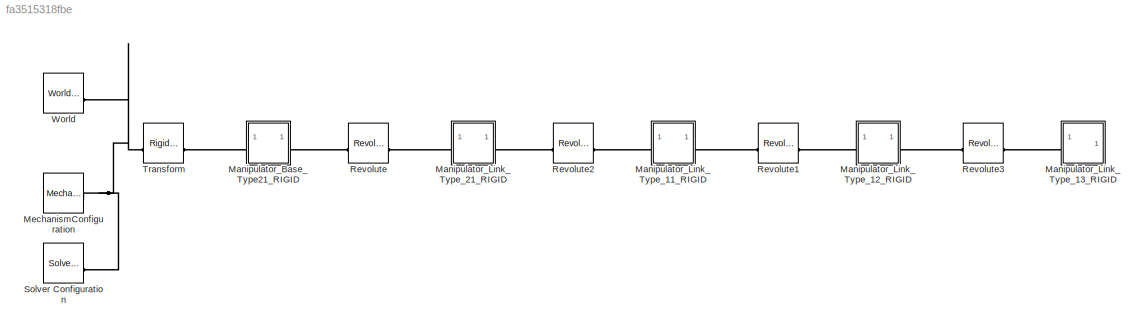
MODEL slx_fa3515318fbe
KIND model
CONFIG AbsTol = auto
CONFIG EnableMultiTasking = off
CONFIG FixedStep = auto
CONFIG MaxStep = auto
CONFIG MinStep = auto
CONFIG RelTol = 1e-3
CONFIG SampleTimeConstraint = Unconstrained
CONFIG SolverName = VariableStepAuto
CONFIG StartTime = 0.0
CONFIG StopTime = 10.0
WORKSPACE source: external: MATLAB File  (data not in archive)
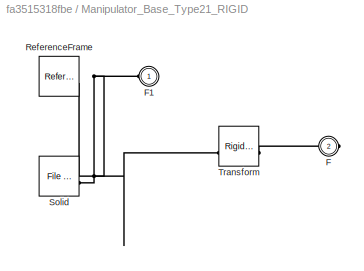
BLOCK [SubSystem] Manipulator_Base_Type21_RIGID
BLOCK [PMIOPort] Manipulator_Base_Type21_RIGID/F
  Port = 2
  Side = Right
BLOCK [PMIOPort] Manipulator_Base_Type21_RIGID/F1
  Side = Left
BLOCK [Reference] Manipulator_Base_Type21_RIGID/ReferenceFrame  REF=sm_lib/Frames and
Transforms/Reference
Frame
  SourceBlock = sm_lib/Frames and\nTransforms/Reference\nFrame
  SourceType = Reference\nFrame
BLOCK [Reference] Manipulator_Base_Type21_RIGID/Solid  REF=sm_lib/Body Elements/File Solid
  SourceBlock = sm_lib/Body Elements/File Solid
  SourceType = File Solid
BLOCK [Reference] Manipulator_Base_Type21_RIGID/Transform  REF=sm_lib/Frames and
Transforms/Rigid
Transform
  SourceBlock = sm_lib/Frames and\nTransforms/Rigid\nTransform
  SourceType = Rigid\nTransform
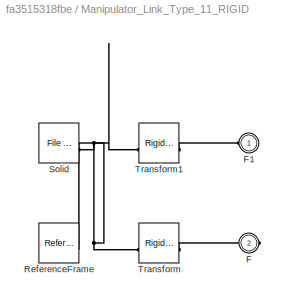
BLOCK [SubSystem] Manipulator_Link_Type_11_RIGID
BLOCK [PMIOPort] Manipulator_Link_Type_11_RIGID/F
  Port = 2
  Side = Right
BLOCK [PMIOPort] Manipulator_Link_Type_11_RIGID/F1
  Side = Left
BLOCK [Reference] Manipulator_Link_Type_11_RIGID/ReferenceFrame  REF=sm_lib/Frames and
Transforms/Reference
Frame
  SourceBlock = sm_lib/Frames and\nTransforms/Reference\nFrame
  SourceType = Reference\nFrame
BLOCK [Reference] Manipulator_Link_Type_11_RIGID/Solid  REF=sm_lib/Body Elements/File Solid
  SourceBlock = sm_lib/Body Elements/File Solid
  SourceType = File Solid
BLOCK [Reference] Manipulator_Link_Type_11_RIGID/Transform  REF=sm_lib/Frames and
Transforms/Rigid
Transform
  SourceBlock = sm_lib/Frames and\nTransforms/Rigid\nTransform
  SourceType = Rigid\nTransform
BLOCK [Reference] Manipulator_Link_Type_11_RIGID/Transform1  REF=sm_lib/Frames and
Transforms/Rigid
Transform
  SourceBlock = sm_lib/Frames and\nTransforms/Rigid\nTransform
  SourceType = Rigid\nTransform
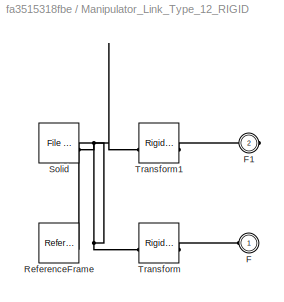
BLOCK [SubSystem] Manipulator_Link_Type_12_RIGID
BLOCK [PMIOPort] Manipulator_Link_Type_12_RIGID/F
  Side = Left
BLOCK [PMIOPort] Manipulator_Link_Type_12_RIGID/F1
  Port = 2
  Side = Right
BLOCK [Reference] Manipulator_Link_Type_12_RIGID/ReferenceFrame  REF=sm_lib/Frames and
Transforms/Reference
Frame
  SourceBlock = sm_lib/Frames and\nTransforms/Reference\nFrame
  SourceType = Reference\nFrame
BLOCK [Reference] Manipulator_Link_Type_12_RIGID/Solid  REF=sm_lib/Body Elements/File Solid
  SourceBlock = sm_lib/Body Elements/File Solid
  SourceType = File Solid
BLOCK [Reference] Manipulator_Link_Type_12_RIGID/Transform  REF=sm_lib/Frames and
Transforms/Rigid
Transform
  SourceBlock = sm_lib/Frames and\nTransforms/Rigid\nTransform
  SourceType = Rigid\nTransform
BLOCK [Reference] Manipulator_Link_Type_12_RIGID/Transform1  REF=sm_lib/Frames and
Transforms/Rigid
Transform
  SourceBlock = sm_lib/Frames and\nTransforms/Rigid\nTransform
  SourceType = Rigid\nTransform
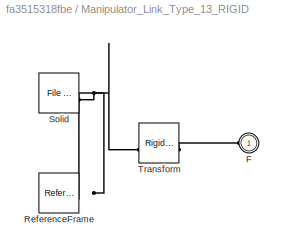
BLOCK [SubSystem] Manipulator_Link_Type_13_RIGID
BLOCK [PMIOPort] Manipulator_Link_Type_13_RIGID/F
  Side = Left
BLOCK [Reference] Manipulator_Link_Type_13_RIGID/ReferenceFrame  REF=sm_lib/Frames and
Transforms/Reference
Frame
  SourceBlock = sm_lib/Frames and\nTransforms/Reference\nFrame
  SourceType = Reference\nFrame
BLOCK [Reference] Manipulator_Link_Type_13_RIGID/Solid  REF=sm_lib/Body Elements/File Solid
  SourceBlock = sm_lib/Body Elements/File Solid
  SourceType = File Solid
BLOCK [Reference] Manipulator_Link_Type_13_RIGID/Transform  REF=sm_lib/Frames and
Transforms/Rigid
Transform
  SourceBlock = sm_lib/Frames and\nTransforms/Rigid\nTransform
  SourceType = Rigid\nTransform
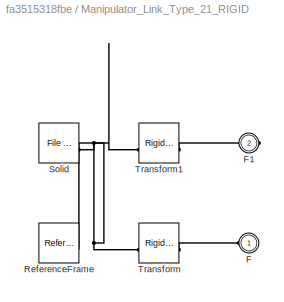
BLOCK [SubSystem] Manipulator_Link_Type_21_RIGID
BLOCK [PMIOPort] Manipulator_Link_Type_21_RIGID/F
  Side = Left
BLOCK [PMIOPort] Manipulator_Link_Type_21_RIGID/F1
  Port = 2
  Side = Right
BLOCK [Reference] Manipulator_Link_Type_21_RIGID/ReferenceFrame  REF=sm_lib/Frames and
Transforms/Reference
Frame
  SourceBlock = sm_lib/Frames and\nTransforms/Reference\nFrame
  SourceType = Reference\nFrame
BLOCK [Reference] Manipulator_Link_Type_21_RIGID/Solid  REF=sm_lib/Body Elements/File Solid
  SourceBlock = sm_lib/Body Elements/File Solid
  SourceType = File Solid
BLOCK [Reference] Manipulator_Link_Type_21_RIGID/Transform  REF=sm_lib/Frames and
Transforms/Rigid
Transform
  SourceBlock = sm_lib/Frames and\nTransforms/Rigid\nTransform
  SourceType = Rigid\nTransform
BLOCK [Reference] Manipulator_Link_Type_21_RIGID/Transform1  REF=sm_lib/Frames and
Transforms/Rigid
Transform
  SourceBlock = sm_lib/Frames and\nTransforms/Rigid\nTransform
  SourceType = Rigid\nTransform
BLOCK [Reference] MechanismConfiguration  REF=sm_lib/Utilities/Mechanism
Configuration
  SourceBlock = sm_lib/Utilities/Mechanism\nConfiguration
  SourceType = Mechanism\nConfiguration
BLOCK [Reference] Revolute  REF=sm_lib/Joints/Revolute Joint
  SourceBlock = sm_lib/Joints/Revolute Joint
  SourceType = Revolute Joint
BLOCK [Reference] Revolute1  REF=sm_lib/Joints/Revolute Joint
  SourceBlock = sm_lib/Joints/Revolute Joint
  SourceType = Revolute Joint
BLOCK [Reference] Revolute2  REF=sm_lib/Joints/Revolute Joint
  SourceBlock = sm_lib/Joints/Revolute Joint
  SourceType = Revolute Joint
BLOCK [Reference] Revolute3  REF=sm_lib/Joints/Revolute Joint
  SourceBlock = sm_lib/Joints/Revolute Joint
  SourceType = Revolute Joint
BLOCK [Reference] Solver Configuration  REF=nesl_utility/Solver
Configuration
  SourceBlock = nesl_utility/Solver\nConfiguration
  SourceType = Solver\nConfiguration
BLOCK [Reference] Transform  REF=sm_lib/Frames and
Transforms/Rigid
Transform
  SourceBlock = sm_lib/Frames and\nTransforms/Rigid\nTransform
  SourceType = Rigid\nTransform
BLOCK [Reference] World  REF=sm_lib/Frames and
Transforms/World Frame
  SourceBlock = sm_lib/Frames and\nTransforms/World Frame
  SourceType = World Frame
PNET net1: Manipulator_Base_Type21_RIGID/F1:RConn1 -- Manipulator_Base_Type21_RIGID/ReferenceFrame:RConn1 -- Manipulator_Base_Type21_RIGID/Solid:RConn1 -- Manipulator_Base_Type21_RIGID/Transform:LConn1
PLINE Manipulator_Base_Type21_RIGID/F:RConn1 -- Manipulator_Base_Type21_RIGID/Transform:RConn1
PLINE Manipulator_Base_Type21_RIGID:LConn1 -- Transform:RConn1
PLINE Manipulator_Base_Type21_RIGID:RConn1 -- Revolute:LConn1
PLINE Manipulator_Link_Type_11_RIGID/F1:RConn1 -- Manipulator_Link_Type_11_RIGID/Transform1:RConn1
PLINE Manipulator_Link_Type_11_RIGID/F:RConn1 -- Manipulator_Link_Type_11_RIGID/Transform:RConn1
PNET net2: Manipulator_Link_Type_11_RIGID/ReferenceFrame:RConn1 -- Manipulator_Link_Type_11_RIGID/Solid:RConn1 -- Manipulator_Link_Type_11_RIGID/Transform1:LConn1 -- Manipulator_Link_Type_11_RIGID/Transform:LConn1
PLINE Manipulator_Link_Type_11_RIGID:LConn1 -- Revolute2:RConn1
PLINE Manipulator_Link_Type_11_RIGID:RConn1 -- Revolute1:LConn1
PLINE Manipulator_Link_Type_12_RIGID/F1:RConn1 -- Manipulator_Link_Type_12_RIGID/Transform1:RConn1
PLINE Manipulator_Link_Type_12_RIGID/F:RConn1 -- Manipulator_Link_Type_12_RIGID/Transform:RConn1
PNET net3: Manipulator_Link_Type_12_RIGID/ReferenceFrame:RConn1 -- Manipulator_Link_Type_12_RIGID/Solid:RConn1 -- Manipulator_Link_Type_12_RIGID/Transform1:LConn1 -- Manipulator_Link_Type_12_RIGID/Transform:LConn1
PLINE Manipulator_Link_Type_12_RIGID:LConn1 -- Revolute1:RConn1
PLINE Manipulator_Link_Type_12_RIGID:RConn1 -- Revolute3:LConn1
PLINE Manipulator_Link_Type_13_RIGID/F:RConn1 -- Manipulator_Link_Type_13_RIGID/Transform:RConn1
PNET net4: Manipulator_Link_Type_13_RIGID/ReferenceFrame:RConn1 -- Manipulator_Link_Type_13_RIGID/Solid:RConn1 -- Manipulator_Link_Type_13_RIGID/Transform:LConn1
PLINE Manipulator_Link_Type_13_RIGID:LConn1 -- Revolute3:RConn1
PLINE Manipulator_Link_Type_21_RIGID/F1:RConn1 -- Manipulator_Link_Type_21_RIGID/Transform1:RConn1
PLINE Manipulator_Link_Type_21_RIGID/F:RConn1 -- Manipulator_Link_Type_21_RIGID/Transform:RConn1
PNET net5: Manipulator_Link_Type_21_RIGID/ReferenceFrame:RConn1 -- Manipulator_Link_Type_21_RIGID/Solid:RConn1 -- Manipulator_Link_Type_21_RIGID/Transform1:LConn1 -- Manipulator_Link_Type_21_RIGID/Transform:LConn1
PLINE Manipulator_Link_Type_21_RIGID:LConn1 -- Revolute:RConn1
PLINE Manipulator_Link_Type_21_RIGID:RConn1 -- Revolute2:LConn1
PNET net6: MechanismConfiguration:RConn1 -- Solver Configuration:RConn1 -- Transform:LConn1 -- World:RConn1
note: PNET lines group multi-terminal physical nets as a canonical sorted terminal list (undirected conserving connections); 2-terminal nets keep the pairwise PLINE form
